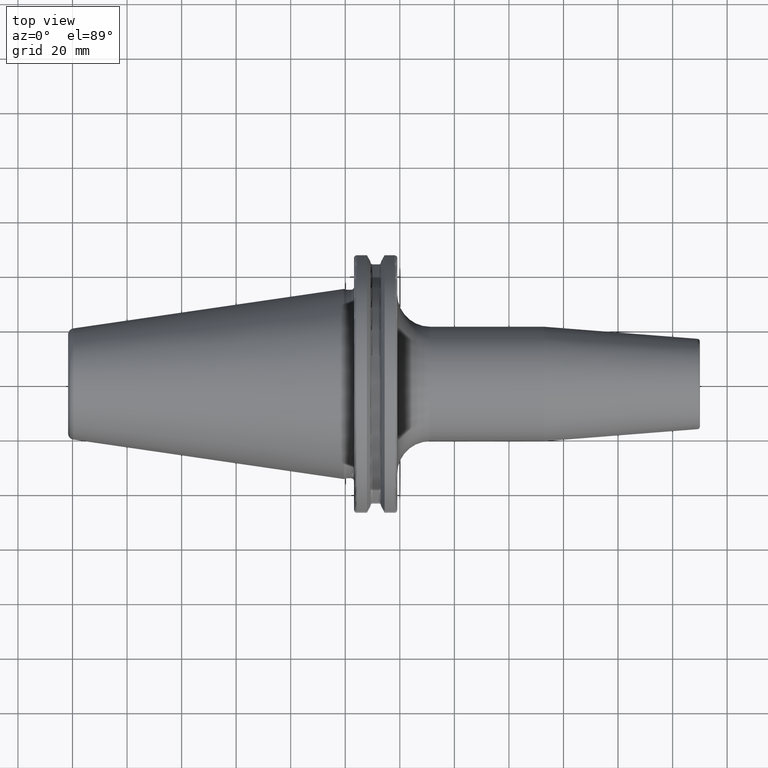
[diagram: clean part render]
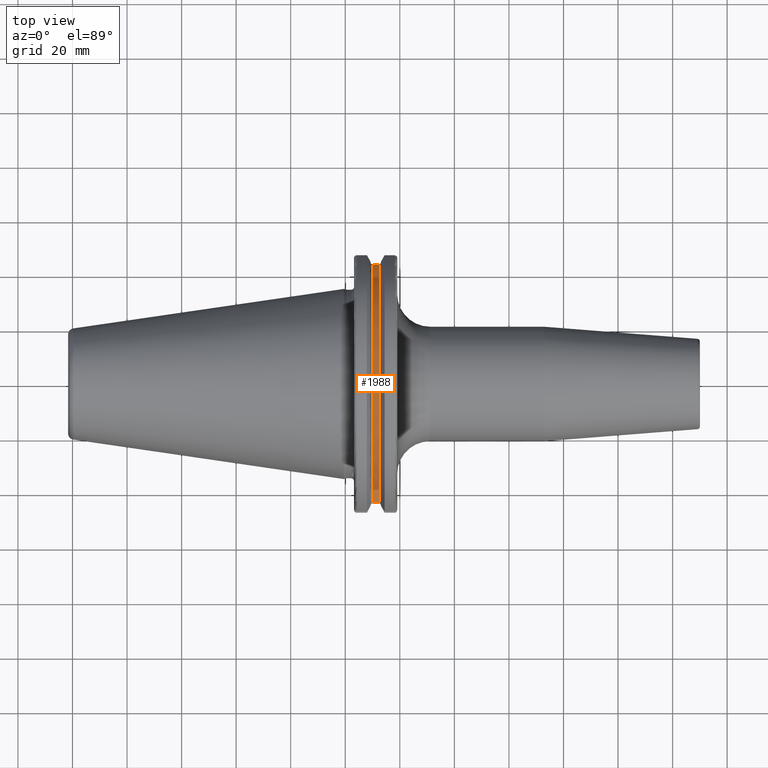
[diagram: same view with one face highlighted and labeled with its STEP entity id]
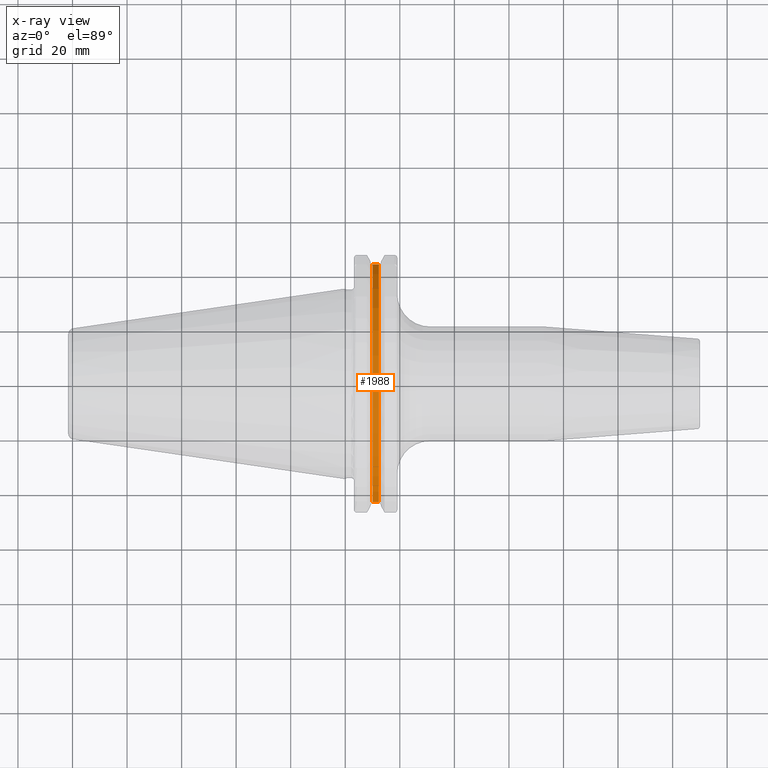
[diagram: x-ray of the same camera — body ghosted, the highlighted face saturated]
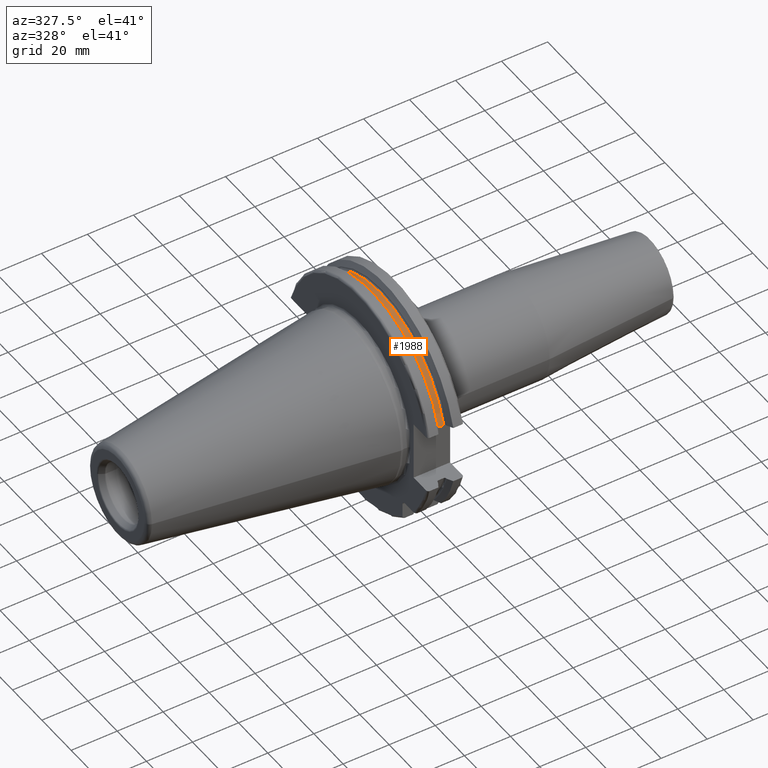
[diagram: same view with one face highlighted and labeled with its STEP entity id]
A machine part, top view. The second image highlights one B-rep face of the part: STEP entity #1988.
The next image is the same camera in x-ray: the body ghosted, the highlighted face saturated — about 0% of this face is hidden behind the body in this view.
A second angle (auxiliary view) of the same face is appended — the face is thin or edge-on in the first view.
In plain terms, the highlighted cylindrical surface (partial cylindrical patch) has radius 45.5 mm, axis along (1, 0, 0).
Its self-contained STEP definition (entity closure, byte-faithful):
#351=CARTESIAN_POINT('',(1.00125E1,4.363301502303E1,1.29E1));
#371=CARTESIAN_POINT('',(1.00125E1,-4.363301502303E1,1.29E1));
#378=DIRECTION('',(1.E0,0.E0,0.E0));
#379=VECTOR('',#378,2.325E0);
#380=CARTESIAN_POINT('',(1.00125E1,4.363301502303E1,1.29E1));
#381=LINE('',#380,#379);
#382=DIRECTION('',(1.E0,0.E0,0.E0));
#383=VECTOR('',#382,2.325E0);
#384=CARTESIAN_POINT('',(1.00125E1,-4.363301502303E1,1.29E1));
#385=LINE('',#384,#383);
#386=CARTESIAN_POINT('',(1.00125E1,0.E0,0.E0));
#387=DIRECTION('',(1.E0,0.E0,0.E0));
#388=DIRECTION('',(0.E0,9.589673631435E-1,2.835164835165E-1));
#389=AXIS2_PLACEMENT_3D('',#386,#387,#388);
#413=CARTESIAN_POINT('',(1.23375E1,0.E0,0.E0));
#414=DIRECTION('',(1.E0,0.E0,0.E0));
#415=DIRECTION('',(0.E0,9.589673631435E-1,2.835164835165E-1));
#416=AXIS2_PLACEMENT_3D('',#413,#414,#415);
#1294=VERTEX_POINT('',#351);
#1295=VERTEX_POINT('',#371);
#1296=CARTESIAN_POINT('',(1.23375E1,4.363301502303E1,1.29E1));
#1297=VERTEX_POINT('',#1296);
#1298=CARTESIAN_POINT('',(1.23375E1,-4.363301502303E1,1.29E1));
#1299=VERTEX_POINT('',#1298);
#1976=CARTESIAN_POINT('',(7.325E0,0.E0,0.E0));
#1977=DIRECTION('',(1.E0,0.E0,0.E0));
#1978=DIRECTION('',(0.E0,-1.E0,0.E0));
#1979=AXIS2_PLACEMENT_3D('',#1976,#1977,#1978);
#1980=CYLINDRICAL_SURFACE('',#1979,4.55E1);
#1981=ORIENTED_EDGE('',*,*,#1910,.T.);
#1983=ORIENTED_EDGE('',*,*,#1982,.T.);
#1984=ORIENTED_EDGE('',*,*,#1939,.F.);
#1985=ORIENTED_EDGE('',*,*,#1969,.F.);
#1986=EDGE_LOOP('',(#1981,#1983,#1984,#1985));
#1987=FACE_OUTER_BOUND('',#1986,.F.);
#1988=ADVANCED_FACE('',(#1987),#1980,.T.);
#390=CIRCLE('',#389,4.55E1);
#417=CIRCLE('',#416,4.55E1);
#1910=EDGE_CURVE('',#1294,#1297,#381,.T.);
#1939=EDGE_CURVE('',#1295,#1299,#385,.T.);
#1969=EDGE_CURVE('',#1294,#1295,#390,.T.);
#1982=EDGE_CURVE('',#1297,#1299,#417,.T.);